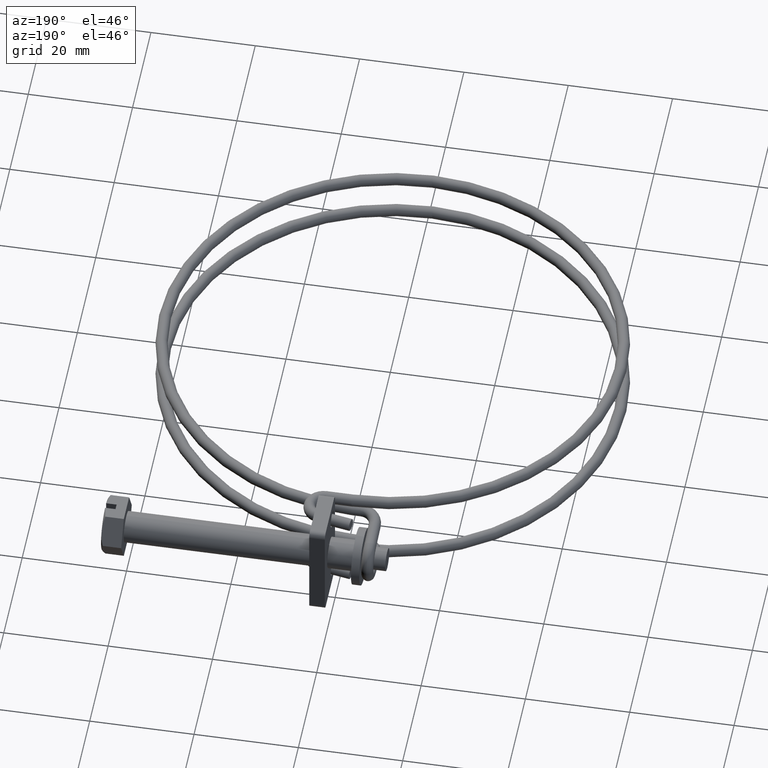
[diagram: clean part render]
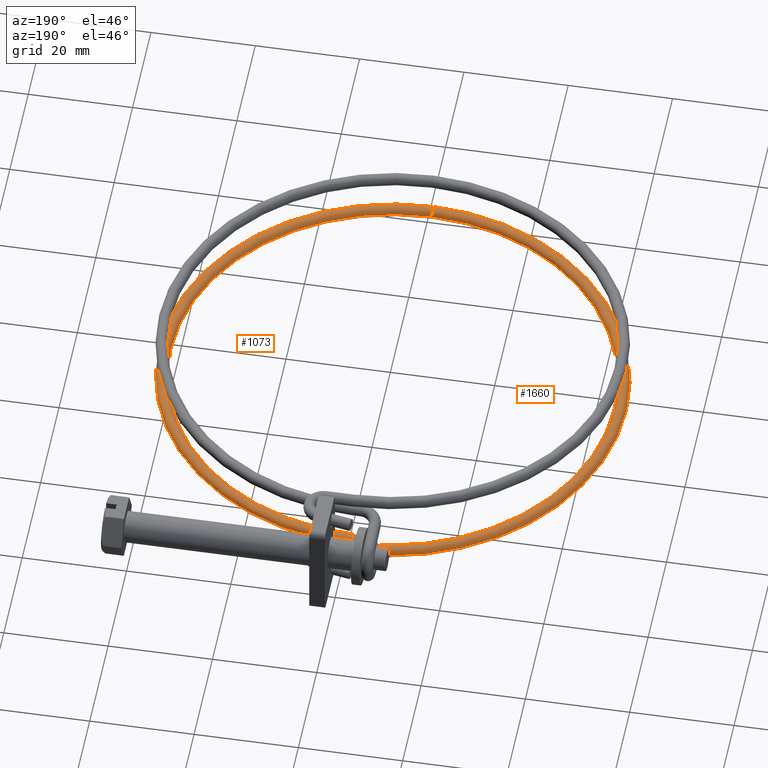
[diagram: same view with one multi-face feature highlighted, each face labeled with its STEP entity id]
A machine part, auxiliary view. The highlighted faces form ONE feature: a constant-radius fillet chain: 2 tangent blend faces with common blend radius 1.15 mm. The faces share edges in the B-rep.
Their STEP definitions:
[1] entity #1660 (Torus):
#57 = EDGE_CURVE ( 'NONE', #1792, #688, #1646, .T. ) ;
#128 = ORIENTED_EDGE ( 'NONE', *, *, #1009, .F. ) ;
#144 = CARTESIAN_POINT ( 'NONE',  ( 4.795900000000004900, -95.21164372549100100, -4.200000000000001100 ) ) ;
#162 = EDGE_CURVE ( 'NONE', #688, #2587, #1418, .T. ) ;
#170 = ORIENTED_EDGE ( 'NONE', *, *, #57, .F. ) ;
#174 = ORIENTED_EDGE ( 'NONE', *, *, #956, .T. ) ;
#212 = CIRCLE ( 'NONE', #1114, 1.149999999999999900 ) ;
#246 = CARTESIAN_POINT ( 'NONE',  ( 4.795900000000611600, -9.061227298243855100, -6.519054737732312300 ) ) ;
#337 = DIRECTION ( 'NONE',  ( 0.0000000000000000000, 0.9996378893502956300, -0.02690892371103315000 ) ) ;
#379 = CARTESIAN_POINT ( 'NONE',  ( 4.795899999999999600, -51.56164372549101000, -5.375000000000000900 ) ) ;
#517 = CARTESIAN_POINT ( 'NONE',  ( 4.795899999999987200, -94.06206015273815500, -4.230945262267690400 ) ) ;
#620 = DIRECTION ( 'NONE',  ( 0.0000000000000000000, 0.9996378893502956300, -0.02690892371103315400 ) ) ;
#630 = AXIS2_PLACEMENT_3D ( 'NONE', #2643, #1177, #2894 ) ;
#675 = AXIS2_PLACEMENT_3D ( 'NONE', #798, #1794, #337 ) ;
#688 = VERTEX_POINT ( 'NONE', #1626 ) ;
#691 = ORIENTED_EDGE ( 'NONE', *, *, #2694, .T. ) ;
#798 = CARTESIAN_POINT ( 'NONE',  ( 4.795899999999999600, -51.56164372549101000, -5.375000000000000900 ) ) ;
#819 = DIRECTION ( 'NONE',  ( 1.508455196501577500E-014, -0.9945218953682732900, 0.1045284632676544400 ) ) ;
#940 = AXIS2_PLACEMENT_3D ( 'NONE', #379, #2074, #620 ) ;
#956 = EDGE_CURVE ( 'NONE', #1191, #2241, #2072, .T. ) ;
#1009 = EDGE_CURVE ( 'NONE', #2587, #2241, #2721, .T. ) ;
#1020 = EDGE_CURVE ( 'NONE', #2985, #1191, #212, .T. ) ;
#1043 = DIRECTION ( 'NONE',  ( 1.508455196501577500E-014, -0.9945218953682732900, 0.1045284632676544400 ) ) ;
#1104 = CARTESIAN_POINT ( 'NONE',  ( 4.795900000000610700, -7.911643725491010100, -6.550000000000000700 ) ) ;
#1114 = AXIS2_PLACEMENT_3D ( 'NONE', #1104, #2824, #1356 ) ;
#1177 = DIRECTION ( 'NONE',  ( -1.000000000000000000, -8.502678992173102500E-016, -7.836559837725485300E-016 ) ) ;
#1185 = DIRECTION ( 'NONE',  ( -0.0000000000000000000, -0.02690892371103315400, -0.9996378893502956300 ) ) ;
#1191 = VERTEX_POINT ( 'NONE', #2784 ) ;
#1356 = DIRECTION ( 'NONE',  ( -7.542275982507857100E-016, 0.9987051081362557900, 0.05087344083654696300 ) ) ;
#1418 = CIRCLE ( 'NONE', #1617, 1.149999999999995500 ) ;
#1449 = ORIENTED_EDGE ( 'NONE', *, *, #1020, .T. ) ;
#1451 = ORIENTED_EDGE ( 'NONE', *, *, #162, .F. ) ;
#1617 = AXIS2_PLACEMENT_3D ( 'NONE', #144, #2817, #1043 ) ;
#1626 = CARTESIAN_POINT ( 'NONE',  ( 4.795899999999987200, -94.06164372549099500, -4.200000000000001100 ) ) ;
#1646 = CIRCLE ( 'NONE', #1685, 1.149999999999995500 ) ;
#1660 = ADVANCED_FACE ( 'NONE', ( #2266 ), #2857, .T. ) ;
#1685 = AXIS2_PLACEMENT_3D ( 'NONE', #2556, #2288, #819 ) ;
#1792 = VERTEX_POINT ( 'NONE', #517 ) ;
#1794 = DIRECTION ( 'NONE',  ( -0.0000000000000000000, -0.02690892371103315400, -0.9996378893502956300 ) ) ;
#2072 = CIRCLE ( 'NONE', #630, 1.149999999999999900 ) ;
#2074 = DIRECTION ( 'NONE',  ( -0.0000000000000000000, -0.02690892371103315400, -0.9996378893502956300 ) ) ;
#2096 = CARTESIAN_POINT ( 'NONE',  ( 4.795900000000021800, -96.36122729824384700, -4.169054737732314400 ) ) ;
#2196 = CIRCLE ( 'NONE', #2323, 42.51581185550085700 ) ;
#2241 = VERTEX_POINT ( 'NONE', #2350 ) ;
#2266 = FACE_OUTER_BOUND ( 'NONE', #3099, .T. ) ;
#2288 = DIRECTION ( 'NONE',  ( 1.000000000000000000, 1.489016563090529400E-014, -1.207367539279857700E-015 ) ) ;
#2323 = AXIS2_PLACEMENT_3D ( 'NONE', #2655, #1185, #2904 ) ;
#2350 = CARTESIAN_POINT ( 'NONE',  ( 4.795900000000609800, -6.762060152738176700, -6.580945262267689200 ) ) ;
#2556 = CARTESIAN_POINT ( 'NONE',  ( 4.795900000000004900, -95.21164372549100100, -4.200000000000001100 ) ) ;
#2587 = VERTEX_POINT ( 'NONE', #2096 ) ;
#2643 = CARTESIAN_POINT ( 'NONE',  ( 4.795900000000610700, -7.911643725491010100, -6.550000000000000700 ) ) ;
#2655 = CARTESIAN_POINT ( 'NONE',  ( 4.795899999999999600, -51.56164372549101000, -5.375000000000000900 ) ) ;
#2694 = EDGE_CURVE ( 'NONE', #1792, #2985, #2196, .T. ) ;
#2721 = CIRCLE ( 'NONE', #940, 44.81581185550085400 ) ;
#2784 = CARTESIAN_POINT ( 'NONE',  ( 4.795900000000609800, -7.911643725491010100, -5.400000000000000400 ) ) ;
#2817 = DIRECTION ( 'NONE',  ( 1.000000000000000000, 1.489016563090529400E-014, -1.207367539279857700E-015 ) ) ;
#2824 = DIRECTION ( 'NONE',  ( -1.000000000000000000, -8.502678992173102500E-016, -7.836559837725485300E-016 ) ) ;
#2857 = TOROIDAL_SURFACE ( 'NONE', #675, 43.66581185550085600, 1.149999999999999900 ) ;
#2894 = DIRECTION ( 'NONE',  ( -7.542275982507857100E-016, 0.9987051081362557900, 0.05087344083654696300 ) ) ;
#2904 = DIRECTION ( 'NONE',  ( 0.0000000000000000000, 0.9996378893502956300, -0.02690892371103315000 ) ) ;
#2985 = VERTEX_POINT ( 'NONE', #246 ) ;
#3099 = EDGE_LOOP ( 'NONE', ( #128, #1451, #170, #691, #1449, #174 ) ) ;
[2] entity #1073 (Torus):
#82 = AXIS2_PLACEMENT_3D ( 'NONE', #1666, #216, #1913 ) ;
#112 = EDGE_CURVE ( 'NONE', #628, #2522, #1484, .T. ) ;
#144 = CARTESIAN_POINT ( 'NONE',  ( 4.795900000000004900, -95.21164372549100100, -4.200000000000001100 ) ) ;
#162 = EDGE_CURVE ( 'NONE', #688, #2587, #1418, .T. ) ;
#216 = DIRECTION ( 'NONE',  ( 1.000000000000000000, 1.489016563090529400E-014, -1.207367539279857700E-015 ) ) ;
#280 = EDGE_CURVE ( 'NONE', #2587, #2522, #3070, .T. ) ;
#323 = DIRECTION ( 'NONE',  ( -1.000000000000000000, -1.476770095099055900E-014, -1.207367539279857700E-015 ) ) ;
#363 = VERTEX_POINT ( 'NONE', #1182 ) ;
#403 = CARTESIAN_POINT ( 'NONE',  ( 4.795899999999999600, -51.56164372549099500, -4.200000000000001100 ) ) ;
#451 = EDGE_CURVE ( 'NONE', #2253, #628, #1455, .T. ) ;
#521 = ORIENTED_EDGE ( 'NONE', *, *, #280, .T. ) ;
#625 = EDGE_CURVE ( 'NONE', #363, #688, #1033, .T. ) ;
#628 = VERTEX_POINT ( 'NONE', #2202 ) ;
#636 = DIRECTION ( 'NONE',  ( 0.0000000000000000000, 0.0000000000000000000, -1.000000000000000000 ) ) ;
#641 = DIRECTION ( 'NONE',  ( 0.0000000000000000000, 0.0000000000000000000, -1.000000000000000000 ) ) ;
#688 = VERTEX_POINT ( 'NONE', #1626 ) ;
#697 = TOROIDAL_SURFACE ( 'NONE', #2248, 43.64999999999999900, 1.149999999999999900 ) ;
#826 = AXIS2_PLACEMENT_3D ( 'NONE', #2706, #1233, #2959 ) ;
#876 = CARTESIAN_POINT ( 'NONE',  ( 4.795899999999998700, -7.911643725490995000, -3.050000000000001600 ) ) ;
#983 = ORIENTED_EDGE ( 'NONE', *, *, #1948, .F. ) ;
#1033 = CIRCLE ( 'NONE', #826, 42.50000000000000000 ) ;
#1043 = DIRECTION ( 'NONE',  ( 1.508455196501577500E-014, -0.9945218953682732900, 0.1045284632676544400 ) ) ;
#1073 = ADVANCED_FACE ( 'NONE', ( #2586 ), #697, .T. ) ;
#1094 = CARTESIAN_POINT ( 'NONE',  ( 4.795899999999999600, -51.56164372549099500, -4.200000000000001100 ) ) ;
#1182 = CARTESIAN_POINT ( 'NONE',  ( 4.795900000000018300, -9.061643725490995400, -4.200000000000001100 ) ) ;
#1233 = DIRECTION ( 'NONE',  ( 0.0000000000000000000, 0.0000000000000000000, -1.000000000000000000 ) ) ;
#1263 = CIRCLE ( 'NONE', #1745, 1.149999999999999700 ) ;
#1288 = ORIENTED_EDGE ( 'NONE', *, *, #162, .T. ) ;
#1334 = CARTESIAN_POINT ( 'NONE',  ( 4.795900000000020900, -96.36164372549099300, -4.200000000000001100 ) ) ;
#1418 = CIRCLE ( 'NONE', #1617, 1.149999999999995500 ) ;
#1455 = CIRCLE ( 'NONE', #2032, 1.149999999999999700 ) ;
#1484 = CIRCLE ( 'NONE', #2357, 44.79999999999999700 ) ;
#1537 = CARTESIAN_POINT ( 'NONE',  ( 4.795900000000000500, -7.911643725490995000, -4.200000000000001100 ) ) ;
#1609 = EDGE_LOOP ( 'NONE', ( #1851, #3088, #983, #2111, #1288, #521 ) ) ;
#1617 = AXIS2_PLACEMENT_3D ( 'NONE', #144, #2817, #1043 ) ;
#1626 = CARTESIAN_POINT ( 'NONE',  ( 4.795899999999987200, -94.06164372549099500, -4.200000000000001100 ) ) ;
#1666 = CARTESIAN_POINT ( 'NONE',  ( 4.795900000000004900, -95.21164372549100100, -4.200000000000001100 ) ) ;
#1745 = AXIS2_PLACEMENT_3D ( 'NONE', #1782, #323, #2015 ) ;
#1782 = CARTESIAN_POINT ( 'NONE',  ( 4.795900000000000500, -7.911643725490995000, -4.200000000000001100 ) ) ;
#1785 = DIRECTION ( 'NONE',  ( -1.508455196501571800E-014, 0.9945218953682732900, 0.1045284632676540700 ) ) ;
#1851 = ORIENTED_EDGE ( 'NONE', *, *, #112, .F. ) ;
#1913 = DIRECTION ( 'NONE',  ( 1.508455196501577500E-014, -0.9945218953682732900, 0.1045284632676544400 ) ) ;
#1948 = EDGE_CURVE ( 'NONE', #363, #2253, #1263, .T. ) ;
#2015 = DIRECTION ( 'NONE',  ( -1.508455196501571800E-014, 0.9945218953682732900, 0.1045284632676540700 ) ) ;
#2032 = AXIS2_PLACEMENT_3D ( 'NONE', #1537, #2526, #1785 ) ;
#2096 = CARTESIAN_POINT ( 'NONE',  ( 4.795900000000021800, -96.36122729824384700, -4.169054737732314400 ) ) ;
#2111 = ORIENTED_EDGE ( 'NONE', *, *, #625, .T. ) ;
#2202 = CARTESIAN_POINT ( 'NONE',  ( 4.795899999999982700, -6.761643725490996500, -4.200000000000001100 ) ) ;
#2248 = AXIS2_PLACEMENT_3D ( 'NONE', #403, #641, #2844 ) ;
#2253 = VERTEX_POINT ( 'NONE', #876 ) ;
#2337 = DIRECTION ( 'NONE',  ( -1.000000000000000000, 0.0000000000000000000, 0.0000000000000000000 ) ) ;
#2357 = AXIS2_PLACEMENT_3D ( 'NONE', #1094, #636, #2337 ) ;
#2522 = VERTEX_POINT ( 'NONE', #1334 ) ;
#2526 = DIRECTION ( 'NONE',  ( -1.000000000000000000, -1.476770095099055900E-014, -1.207367539279857700E-015 ) ) ;
#2586 = FACE_OUTER_BOUND ( 'NONE', #1609, .T. ) ;
#2587 = VERTEX_POINT ( 'NONE', #2096 ) ;
#2706 = CARTESIAN_POINT ( 'NONE',  ( 4.795899999999999600, -51.56164372549099500, -4.200000000000001100 ) ) ;
#2817 = DIRECTION ( 'NONE',  ( 1.000000000000000000, 1.489016563090529400E-014, -1.207367539279857700E-015 ) ) ;
#2844 = DIRECTION ( 'NONE',  ( -1.000000000000000000, 0.0000000000000000000, 0.0000000000000000000 ) ) ;
#2959 = DIRECTION ( 'NONE',  ( -1.000000000000000000, 0.0000000000000000000, 0.0000000000000000000 ) ) ;
#3070 = CIRCLE ( 'NONE', #82, 1.149999999999995500 ) ;
#3088 = ORIENTED_EDGE ( 'NONE', *, *, #451, .F. ) ;